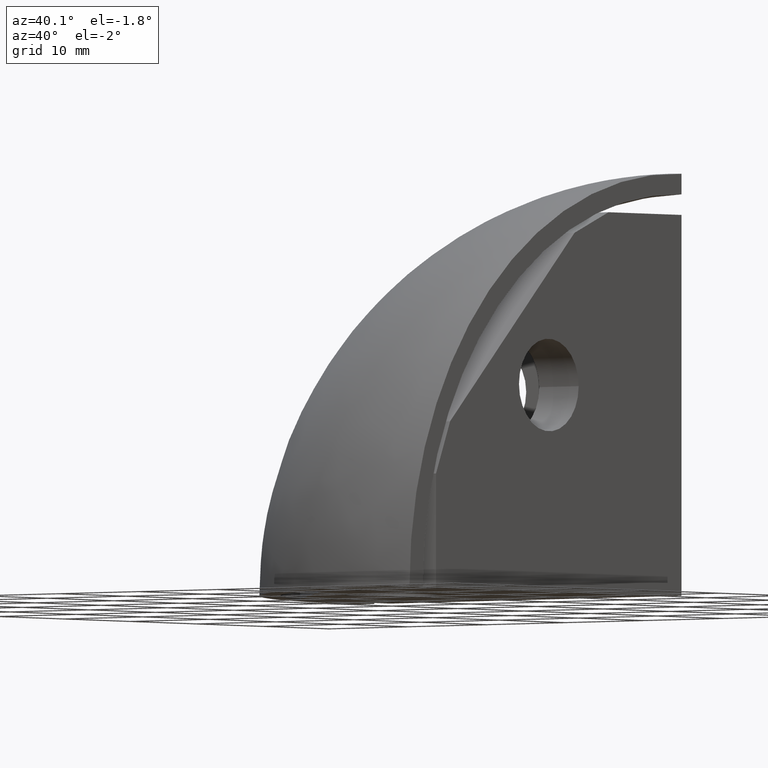
[diagram: clean part render]
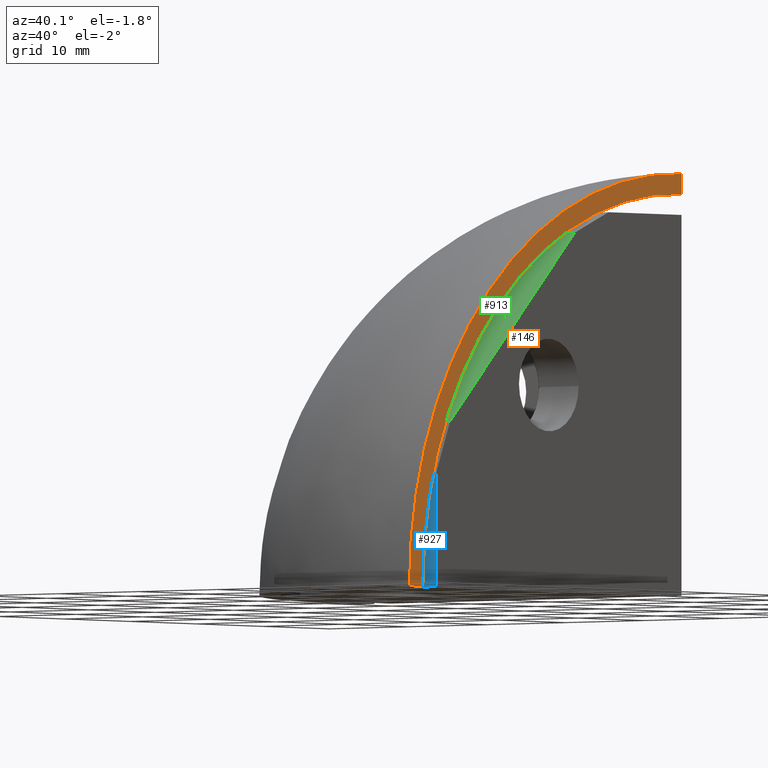
[diagram: same view with three faces highlighted in distinct colors, each labeled with its STEP entity id]
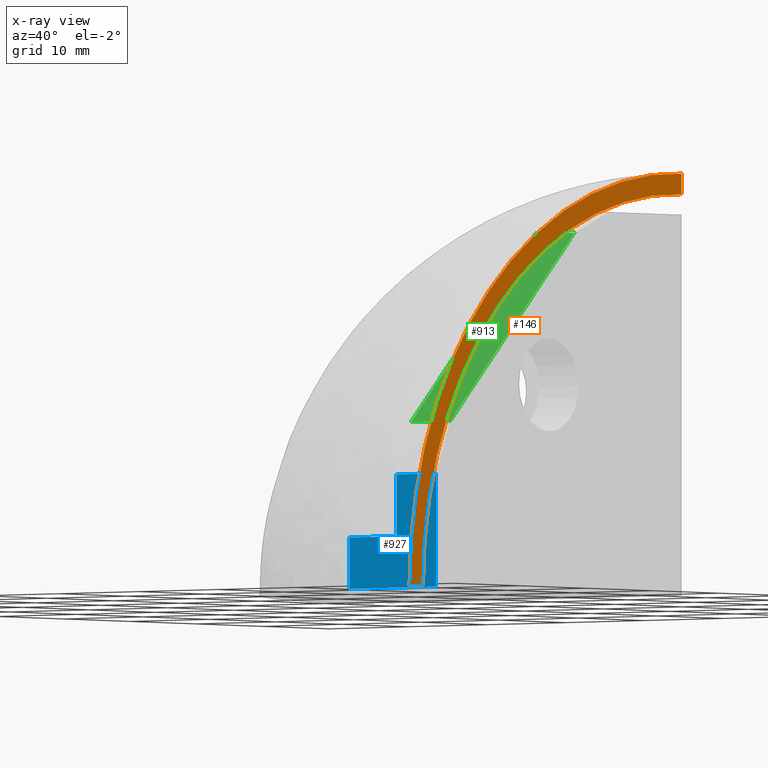
[diagram: x-ray of the same camera — body ghosted, the three highlighted faces saturated]
A machine part, auxiliary view with three faces highlighted in distinct colors.
The next image is the same camera in x-ray (body ghosted, the three faces saturated) — at least one of them is partly hidden behind the body in this view.
Their STEP definitions:

[orange] entity #146 — the highlighted planar face has unit normal (-1, 0, 0).
#21=CARTESIAN_POINT('',(-3.552714E-015,-41.0,3.034610E-015));
#22=VERTEX_POINT('',#21);
#30=CARTESIAN_POINT('',(0.0,0.0,41.0));
#31=VERTEX_POINT('',#30);
#32=CARTESIAN_POINT('',(3.552714E-015,0.0,0.0));
#33=DIRECTION('',(-1.0,6.123234E-017,-7.401487E-017));
#34=DIRECTION('',(-6.123234E-017,-1.0,7.401487E-017));
#35=AXIS2_PLACEMENT_3D('',#32,#33,#34);
#36=CIRCLE('',#35,41.0);
#37=EDGE_CURVE('',#22,#31,#36,.T.);
#66=CARTESIAN_POINT('',(-3.552714E-015,0.0,39.0));
#67=VERTEX_POINT('',#66);
#68=CARTESIAN_POINT('',(-3.552714E-015,-39.0,2.960595E-015));
#69=VERTEX_POINT('',#68);
#70=CARTESIAN_POINT('',(3.552714E-015,0.0,0.0));
#71=DIRECTION('',(1.0,-6.123234E-017,7.401487E-017));
#72=DIRECTION('',(-6.123234E-017,-1.0,7.401487E-017));
#73=AXIS2_PLACEMENT_3D('',#70,#71,#72);
#74=CIRCLE('',#73,39.0);
#75=EDGE_CURVE('',#67,#69,#74,.T.);
#102=CARTESIAN_POINT('',(-3.430249E-015,-39.0,2.886580E-015));
#103=DIRECTION('',(0.0,-1.0,0.0));
#104=VECTOR('',#103,2.0);
#105=LINE('',#102,#104);
#106=EDGE_CURVE('',#69,#22,#105,.T.);
#124=CARTESIAN_POINT('',(0.0,0.0,41.0));
#125=DIRECTION('',(0.0,0.0,-1.0));
#126=VECTOR('',#125,2.0);
#127=LINE('',#124,#126);
#128=EDGE_CURVE('',#31,#67,#127,.T.);
#135=CARTESIAN_POINT('',(0.0,-45.100000745576338,-4.100000745576341));
#136=DIRECTION('',(-1.0,0.0,0.0));
#137=DIRECTION('',(0.0,0.0,1.0));
#138=AXIS2_PLACEMENT_3D('',#135,#136,#137);
#139=PLANE('',#138);
#140=ORIENTED_EDGE('',*,*,#106,.F.);
#141=ORIENTED_EDGE('',*,*,#75,.F.);
#142=ORIENTED_EDGE('',*,*,#128,.F.);
#143=ORIENTED_EDGE('',*,*,#37,.F.);
#144=EDGE_LOOP('',(#140,#141,#142,#143));
#145=FACE_OUTER_BOUND('',#144,.T.);
#146=ADVANCED_FACE('',(#145),#139,.F.);

[blue] entity #927 — the highlighted planar face has unit normal (0, -1, 0).
#307=CARTESIAN_POINT('',(0.0,-37.0,0.0));
#308=VERTEX_POINT('',#307);
#349=CARTESIAN_POINT('',(0.0,-37.0,10.999999999999998));
#350=VERTEX_POINT('',#349);
#357=CARTESIAN_POINT('',(0.0,-37.0,0.0));
#358=DIRECTION('',(0.0,0.0,1.0));
#359=VECTOR('',#358,10.999999999999998);
#360=LINE('',#357,#359);
#361=EDGE_CURVE('',#308,#350,#360,.T.);
#430=CARTESIAN_POINT('',(-5.0,-37.0,5.0));
#431=VERTEX_POINT('',#430);
#438=CARTESIAN_POINT('',(-5.0,-37.0,11.0));
#439=VERTEX_POINT('',#438);
#440=CARTESIAN_POINT('',(-5.0,-37.0,11.0));
#441=DIRECTION('',(0.0,0.0,-1.0));
#442=VECTOR('',#441,6.0);
#443=LINE('',#440,#442);
#444=EDGE_CURVE('',#439,#431,#443,.T.);
#492=CARTESIAN_POINT('',(-5.0,-37.0,11.0));
#493=DIRECTION('',(1.0,0.0,0.0));
#494=VECTOR('',#493,5.0);
#495=LINE('',#492,#494);
#496=EDGE_CURVE('',#439,#350,#495,.T.);
#548=CARTESIAN_POINT('',(-11.0,-37.0,5.0));
#549=VERTEX_POINT('',#548);
#556=CARTESIAN_POINT('',(-11.0,-37.0,5.0));
#557=DIRECTION('',(1.0,0.0,0.0));
#558=VECTOR('',#557,6.0);
#559=LINE('',#556,#558);
#560=EDGE_CURVE('',#549,#431,#559,.T.);
#588=CARTESIAN_POINT('',(-11.0,-37.0,0.0));
#589=VERTEX_POINT('',#588);
#596=CARTESIAN_POINT('',(-11.0,-37.0,0.0));
#597=DIRECTION('',(0.0,0.0,1.0));
#598=VECTOR('',#597,5.0);
#599=LINE('',#596,#598);
#600=EDGE_CURVE('',#589,#549,#599,.T.);
#619=CARTESIAN_POINT('',(-11.0,-37.0,0.0));
#620=DIRECTION('',(1.0,0.0,0.0));
#621=VECTOR('',#620,11.0);
#622=LINE('',#619,#621);
#623=EDGE_CURVE('',#589,#308,#622,.T.);
#914=CARTESIAN_POINT('',(-37.0,-37.0,0.0));
#915=DIRECTION('',(0.0,-1.0,0.0));
#916=DIRECTION('',(1.0,0.0,0.0));
#917=AXIS2_PLACEMENT_3D('',#914,#915,#916);
#918=PLANE('',#917);
#919=ORIENTED_EDGE('',*,*,#623,.T.);
#920=ORIENTED_EDGE('',*,*,#361,.T.);
#921=ORIENTED_EDGE('',*,*,#496,.F.);
#922=ORIENTED_EDGE('',*,*,#444,.T.);
#923=ORIENTED_EDGE('',*,*,#560,.F.);
#924=ORIENTED_EDGE('',*,*,#600,.F.);
#925=EDGE_LOOP('',(#919,#920,#921,#922,#923,#924));
#926=FACE_OUTER_BOUND('',#925,.T.);
#927=ADVANCED_FACE('',(#926),#918,.T.);

[green] entity #913 — the highlighted face is a freeform B-spline surface patch.
#333=CARTESIAN_POINT('',(-3.552714E-015,-16.121320343559642,34.878679656440362));
#334=VERTEX_POINT('',#333);
#341=CARTESIAN_POINT('',(-3.552714E-015,-34.878679656440362,16.121320343559645));
#342=VERTEX_POINT('',#341);
#343=CARTESIAN_POINT('',(0.0,-16.121320343559642,34.878679656440362));
#344=DIRECTION('',(0.0,-0.707106781186547,-0.707106781186548));
#345=VECTOR('',#344,26.526911934581186);
#346=LINE('',#343,#345);
#347=EDGE_CURVE('',#334,#342,#346,.T.);
#387=CARTESIAN_POINT('',(-5.0,-16.121320343559645,34.878679656440355));
#388=VERTEX_POINT('',#387);
#389=CARTESIAN_POINT('',(-5.0,-16.121320343559645,34.878679656440355));
#390=CARTESIAN_POINT('',(-4.485416666666666,-16.121320343559645,34.878679656440355));
#391=CARTESIAN_POINT('',(-2.818750000000009,-16.121320343559645,34.878679656440362));
#392=CARTESIAN_POINT('',(-1.152083333333334,-16.121320343559645,34.878679656440355));
#393=CARTESIAN_POINT('',(0.0,-16.121320343559645,34.878679656440355));
#394=B_SPLINE_CURVE_WITH_KNOTS('',3,(#389,#390,#391,#392,#393),.UNSPECIFIED.,.F.,.U.,(4,1,4),(0.0,1.543750000000003,5.0),.UNSPECIFIED.);
#395=EDGE_CURVE('',#388,#334,#394,.T.);
#446=CARTESIAN_POINT('',(-5.0,-34.878679656440355,16.121320343559642));
#447=VERTEX_POINT('',#446);
#454=CARTESIAN_POINT('',(-5.0,-16.121320343559645,34.878679656440355));
#455=DIRECTION('',(0.0,-0.707106781186547,-0.707106781186547));
#456=VECTOR('',#455,26.526911934581189);
#457=LINE('',#454,#456);
#458=EDGE_CURVE('',#388,#447,#457,.T.);
#499=CARTESIAN_POINT('',(-5.0,-34.878679656440355,16.121320343559642));
#500=CARTESIAN_POINT('',(-4.485416666666666,-34.878679656440355,16.121320343559642));
#501=CARTESIAN_POINT('',(-2.818750000000009,-34.878679656440362,16.121320343559645));
#502=CARTESIAN_POINT('',(-1.152083333333334,-34.878679656440355,16.121320343559642));
#503=CARTESIAN_POINT('',(0.0,-34.878679656440355,16.121320343559642));
#504=B_SPLINE_CURVE_WITH_KNOTS('',3,(#499,#500,#501,#502,#503),.UNSPECIFIED.,.F.,.U.,(4,1,4),(0.0,1.543750000000003,5.0),.UNSPECIFIED.);
#505=EDGE_CURVE('',#447,#342,#504,.T.);
#890=CARTESIAN_POINT('',(-5.0,-16.121319904290537,34.878680095709463));
#891=CARTESIAN_POINT('',(-5.0,-22.373773301430180,28.626226698569820));
#892=CARTESIAN_POINT('',(-5.0,-28.626226698569827,22.373773301430177));
#893=CARTESIAN_POINT('',(-5.0,-34.878680095709470,16.121319904290534));
#894=CARTESIAN_POINT('',(-3.333333333333334,-16.121319904290537,34.878680095709463));
#895=CARTESIAN_POINT('',(-3.333333333333334,-22.373773301430180,28.626226698569820));
#896=CARTESIAN_POINT('',(-3.333333333333334,-28.626226698569827,22.373773301430177));
#897=CARTESIAN_POINT('',(-3.333333333333334,-34.878680095709470,16.121319904290534));
#898=CARTESIAN_POINT('',(-1.666666666666667,-16.121319904290537,34.878680095709463));
#899=CARTESIAN_POINT('',(-1.666666666666667,-22.373773301430180,28.626226698569820));
#900=CARTESIAN_POINT('',(-1.666666666666667,-28.626226698569827,22.373773301430177));
#901=CARTESIAN_POINT('',(-1.666666666666667,-34.878680095709470,16.121319904290534));
#902=CARTESIAN_POINT('',(0.0,-16.121319904290537,34.878680095709463));
#903=CARTESIAN_POINT('',(0.0,-22.373773301430180,28.626226698569820));
#904=CARTESIAN_POINT('',(0.0,-28.626226698569827,22.373773301430177));
#905=CARTESIAN_POINT('',(0.0,-34.878680095709470,16.121319904290534));
#906=B_SPLINE_SURFACE_WITH_KNOTS('',3,3,((#890,#894,#898,#902),(#891,#895,#899,#903),(#892,#896,#900,#904),(#893,#897,#901,#905)),.UNSPECIFIED.,.F.,.F.,.U.,(4,4),(4,4),(0.0,26.526913177021846),(0.0,5.0),.UNSPECIFIED.);
#907=ORIENTED_EDGE('',*,*,#505,.T.);
#908=ORIENTED_EDGE('',*,*,#347,.F.);
#909=ORIENTED_EDGE('',*,*,#395,.F.);
#910=ORIENTED_EDGE('',*,*,#458,.T.);
#911=EDGE_LOOP('',(#907,#908,#909,#910));
#912=FACE_OUTER_BOUND('',#911,.T.);
#913=ADVANCED_FACE('',(#912),#906,.T.);